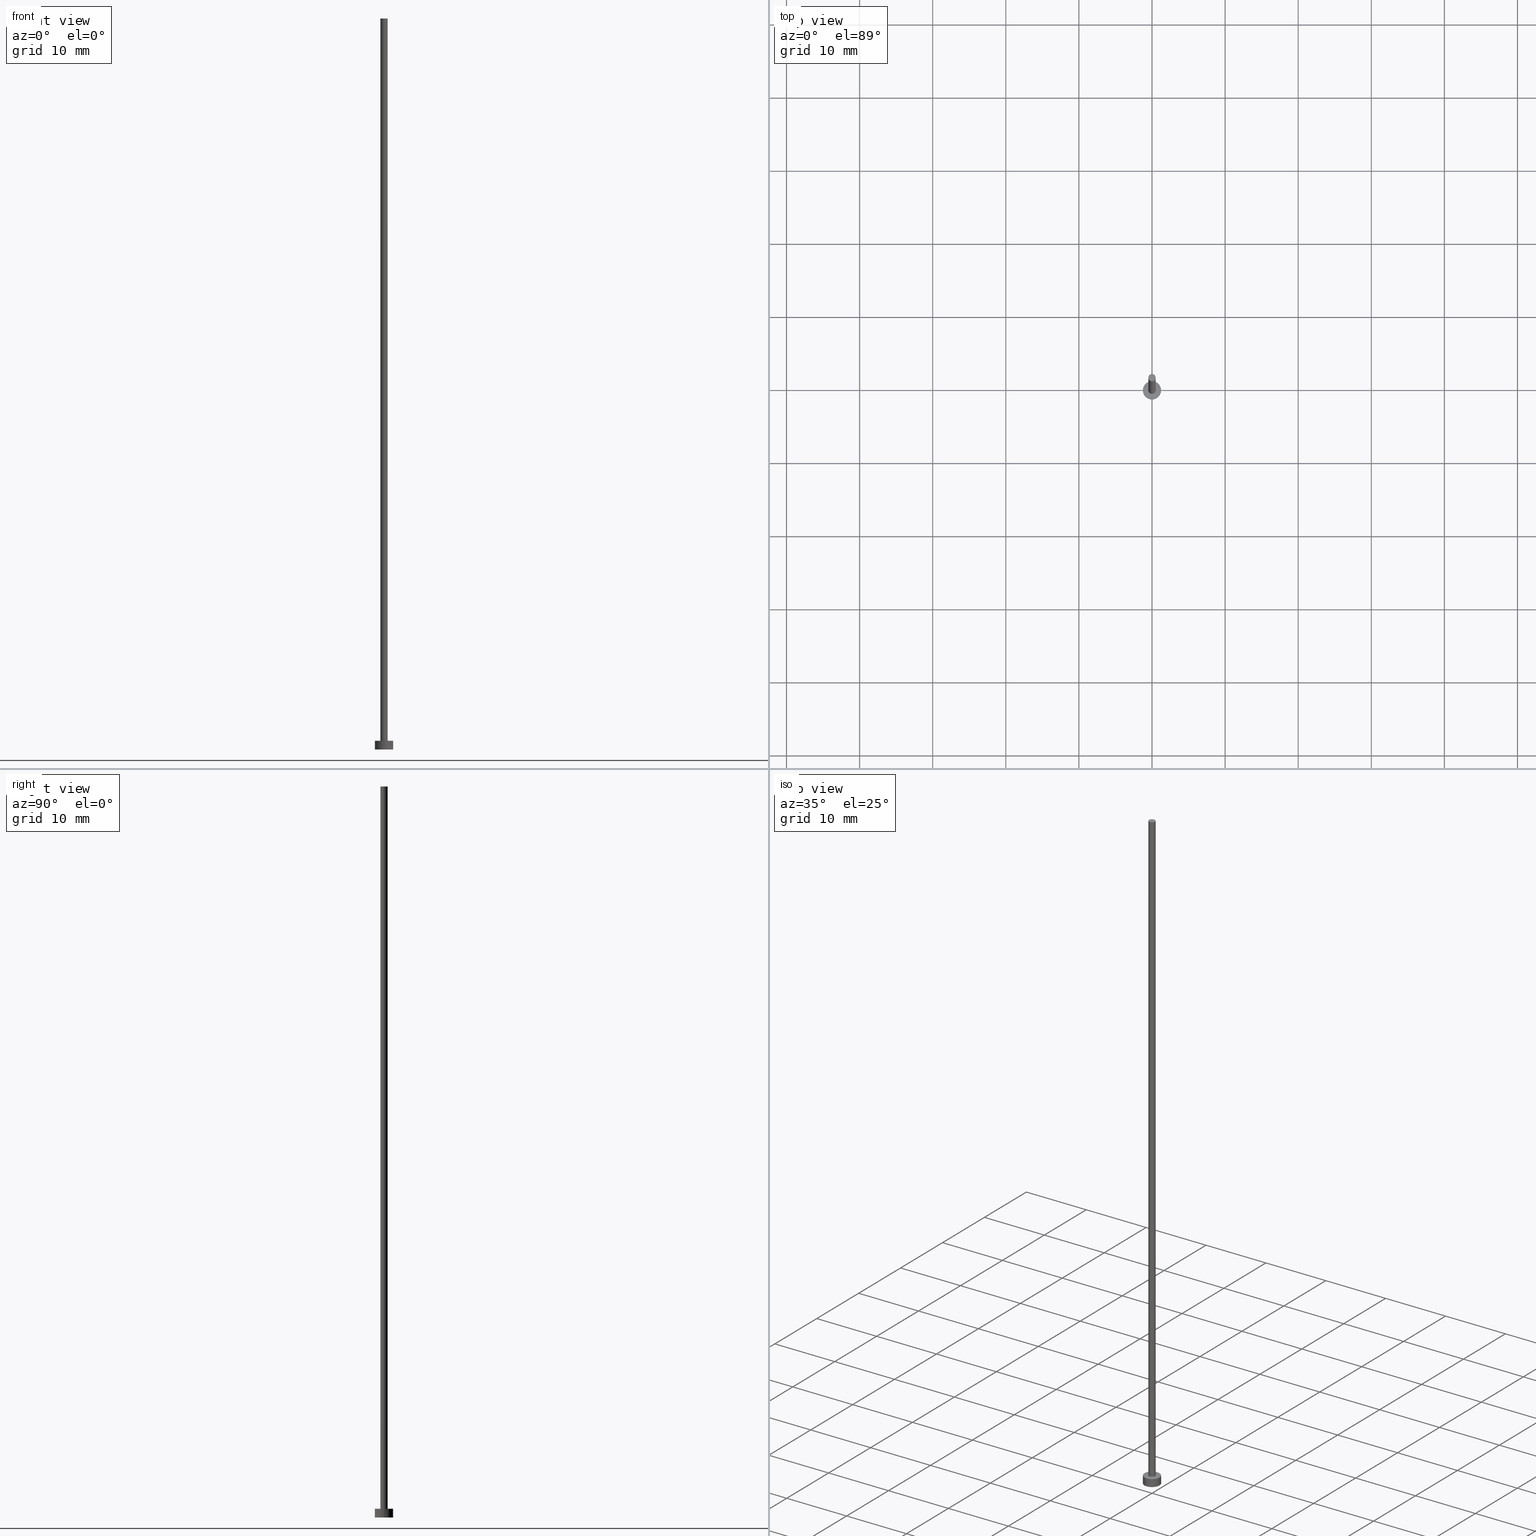
[diagram: canonical four-view strip — front | top / right | iso, engineering-drawing reading convention]
A machine part, canonical four-view strip (front | top / right | iso — engineering-drawing reading convention). The complete STEP part file that produces these views, byte-faithful:
ISO-10303-21;
HEADER;
FILE_DESCRIPTION (( 'STEP AP203' ),
    '1' );
FILE_NAME ('d6e6.STEP',
    '2024-05-30T11:23:34',
    ( '' ),
    ( '' ),
    'SwSTEP 2.0',
    'SolidWorks 2019',
    '' );
FILE_SCHEMA (( 'CONFIG_CONTROL_DESIGN' ));
ENDSEC;

DATA;
#1 = APPROVAL ( #203, 'NEUR�EN�' ) ;
#2 = VERTEX_POINT ( 'NONE', #47 ) ;
#3 = DIRECTION ( 'NONE',  ( 1.000000000000000000, 0.000000000000000000, 0.000000000000000000 ) ) ;
#4 = DIRECTION ( 'NONE',  ( 0.000000000000000000, 0.000000000000000000, 1.000000000000000000 ) ) ;
#5 = DIRECTION ( 'NONE',  ( 1.000000000000000000, 0.000000000000000000, 0.000000000000000000 ) ) ;
#6 = LINE ( 'NONE', #115, #59 ) ;
#7 = CIRCLE ( 'NONE', #161, 1.250000000000000000 ) ;
#8 = PLANE ( 'NONE',  #208 ) ;
#9 = DATE_TIME_ROLE ( 'creation_date' ) ;
#10 = APPROVAL_DATE_TIME ( #227, #36 ) ;
#11 = DIRECTION ( 'NONE',  ( 0.000000000000000000, 0.000000000000000000, 1.000000000000000000 ) ) ;
#12 = VERTEX_POINT ( 'NONE', #144 ) ;
#13 = CIRCLE ( 'NONE', #179, 0.5000000000000000000 ) ;
#14 = CC_DESIGN_PERSON_AND_ORGANIZATION_ASSIGNMENT ( #68, #221, ( #75 ) ) ;
#15 = EDGE_LOOP ( 'NONE', ( #127, #237 ) ) ;
#16 = PLANE ( 'NONE',  #165 ) ;
#17 = CARTESIAN_POINT ( 'NONE',  ( -0.5000000000000000000, 0.000000000000000000, 1.199999999999999956 ) ) ;
#18 = CARTESIAN_POINT ( 'NONE',  ( 1.250000000000000000, 1.530808498934191571E-16, 0.000000000000000000 ) ) ;
#19 = CARTESIAN_POINT ( 'NONE',  ( 0.000000000000000000, 0.000000000000000000, 1.199999999999999956 ) ) ;
#20 = DIRECTION ( 'NONE',  ( 1.000000000000000000, 0.000000000000000000, 0.000000000000000000 ) ) ;
#21 = PRODUCT_RELATED_PRODUCT_CATEGORY ( 'detail', '', ( #166 ) ) ;
#22 = FACE_OUTER_BOUND ( 'NONE', #168, .T. ) ;
#23 = PERSON_AND_ORGANIZATION ( #117, #113 ) ;
#24 = CC_DESIGN_DATE_AND_TIME_ASSIGNMENT ( #212, #187, ( #124 ) ) ;
#25 = DIRECTION ( 'NONE',  ( -0.000000000000000000, -0.000000000000000000, -1.000000000000000000 ) ) ;
#26 = APPROVAL_ROLE ( '' ) ;
#27 = AXIS2_PLACEMENT_3D ( 'NONE', #241, #195, #3 ) ;
#28 = ORIENTED_EDGE ( 'NONE', *, *, #50, .T. ) ;
#29 = LOCAL_TIME ( 13, 23, 34.00000000000000000, #63 ) ;
#30 = SHAPE_DEFINITION_REPRESENTATION ( #229, #71 ) ;
#31 = ORIENTED_EDGE ( 'NONE', *, *, #104, .T. ) ;
#32 = AXIS2_PLACEMENT_3D ( 'NONE', #172, #114, #169 ) ;
#33 = ORIENTED_EDGE ( 'NONE', *, *, #148, .T. ) ;
#34 = AXIS2_PLACEMENT_3D ( 'NONE', #37, #80, #53 ) ;
#35 = CARTESIAN_POINT ( 'NONE',  ( 0.5000000000000000000, 6.123233995736766036E-17, 1.199999999999999956 ) ) ;
#36 = APPROVAL ( #62, 'NEUR�EN�' ) ;
#37 = CARTESIAN_POINT ( 'NONE',  ( 0.000000000000000000, 0.000000000000000000, 100.0000000000000000 ) ) ;
#38 = CARTESIAN_POINT ( 'NONE',  ( 0.000000000000000000, 0.000000000000000000, 0.000000000000000000 ) ) ;
#39 = AXIS2_PLACEMENT_3D ( 'NONE', #200, #246, #251 ) ;
#40 = DIRECTION ( 'NONE',  ( 0.000000000000000000, 0.000000000000000000, 1.000000000000000000 ) ) ;
#41 = CARTESIAN_POINT ( 'NONE',  ( -1.250000000000000000, 0.000000000000000000, 0.000000000000000000 ) ) ;
#42 = ADVANCED_FACE ( 'NONE', ( #121 ), #163, .T. ) ;
#43 = CIRCLE ( 'NONE', #185, 1.250000000000000000 ) ;
#44 = CARTESIAN_POINT ( 'NONE',  ( 0.5000000000000000000, 6.123233995736766036E-17, 100.0000000000000000 ) ) ;
#45 = PERSON_AND_ORGANIZATION_ROLE ( 'design_owner' ) ;
#46 = CALENDAR_DATE ( 2024, 30, 5 ) ;
#47 = CARTESIAN_POINT ( 'NONE',  ( -0.5000000000000000000, 0.000000000000000000, 100.0000000000000000 ) ) ;
#48 = DIRECTION ( 'NONE',  ( -1.000000000000000000, 0.000000000000000000, 0.000000000000000000 ) ) ;
#49 = ORIENTED_EDGE ( 'NONE', *, *, #131, .T. ) ;
#50 = EDGE_CURVE ( 'NONE', #106, #2, #140, .T. ) ;
#51 = EDGE_LOOP ( 'NONE', ( #210, #213, #190, #90 ) ) ;
#52 = ORIENTED_EDGE ( 'NONE', *, *, #222, .F. ) ;
#53 = DIRECTION ( 'NONE',  ( -1.000000000000000000, 0.000000000000000000, 0.000000000000000000 ) ) ;
#54 = ADVANCED_FACE ( 'NONE', ( #219 ), #97, .T. ) ;
#55 =( GEOMETRIC_REPRESENTATION_CONTEXT ( 3 ) GLOBAL_UNCERTAINTY_ASSIGNED_CONTEXT ( ( #170 ) ) GLOBAL_UNIT_ASSIGNED_CONTEXT ( ( #120, #101, #139 ) ) REPRESENTATION_CONTEXT ( 'NONE', 'WORKASPACE' ) );
#56 = LINE ( 'NONE', #242, #243 ) ;
#57 = FACE_OUTER_BOUND ( 'NONE', #143, .T. ) ;
#58 = DIRECTION ( 'NONE',  ( 0.000000000000000000, 0.000000000000000000, 1.000000000000000000 ) ) ;
#59 = VECTOR ( 'NONE', #197, 1000.000000000000000 ) ;
#60 = CC_DESIGN_PERSON_AND_ORGANIZATION_ASSIGNMENT ( #83, #154, ( #73 ) ) ;
#61 = DIRECTION ( 'NONE',  ( 1.000000000000000000, 0.000000000000000000, 0.000000000000000000 ) ) ;
#62 = APPROVAL_STATUS ( 'not_yet_approved' ) ;
#63 = COORDINATED_UNIVERSAL_TIME_OFFSET ( 1, 0, .AHEAD. ) ;
#64 = EDGE_CURVE ( 'NONE', #12, #142, #176, .T. ) ;
#65 = LOCAL_TIME ( 13, 23, 34.00000000000000000, #135 ) ;
#66 = PERSON_AND_ORGANIZATION ( #117, #113 ) ;
#67 = MANIFOLD_SOLID_BREP ( 'P�idat vysunut�m3', #201 ) ;
#68 = PERSON_AND_ORGANIZATION ( #117, #113 ) ;
#69 = CYLINDRICAL_SURFACE ( 'NONE', #231, 1.250000000000000000 ) ;
#70 = APPROVAL ( #107, 'NEUR�EN�' ) ;
#71 = ADVANCED_BREP_SHAPE_REPRESENTATION ( 'd6e6', ( #67, #39 ), #55 ) ;
#72 = ORIENTED_EDGE ( 'NONE', *, *, #164, .F. ) ;
#73 = PRODUCT_DEFINITION ( 'NEZN�M�', '', #75, #248 ) ;
#74 = EDGE_LOOP ( 'NONE', ( #211, #232, #33, #49 ) ) ;
#75 = PRODUCT_DEFINITION_FORMATION_WITH_SPECIFIED_SOURCE ( 'LIBOVOLN�', '', #166, .NOT_KNOWN. ) ;
#76 = EDGE_LOOP ( 'NONE', ( #254, #125, #77, #126 ) ) ;
#77 = ORIENTED_EDGE ( 'NONE', *, *, #100, .T. ) ;
#78 = FACE_OUTER_BOUND ( 'NONE', #76, .T. ) ;
#79 = LOCAL_TIME ( 13, 23, 34.00000000000000000, #141 ) ;
#80 = DIRECTION ( 'NONE',  ( -0.000000000000000000, -0.000000000000000000, -1.000000000000000000 ) ) ;
#81 = CARTESIAN_POINT ( 'NONE',  ( 0.000000000000000000, 0.000000000000000000, 1.199999999999999956 ) ) ;
#82 = CARTESIAN_POINT ( 'NONE',  ( 0.000000000000000000, 0.000000000000000000, 0.000000000000000000 ) ) ;
#83 = PERSON_AND_ORGANIZATION ( #117, #113 ) ;
#84 = SECURITY_CLASSIFICATION_LEVEL ( 'unclassified' ) ;
#85 = EDGE_CURVE ( 'NONE', #2, #106, #119, .T. ) ;
#86 = APPLICATION_PROTOCOL_DEFINITION ( 'international standard', 'config_control_design', 1994, #183 ) ;
#87 = CALENDAR_DATE ( 2024, 30, 5 ) ;
#88 = CARTESIAN_POINT ( 'NONE',  ( 1.250000000000000000, 1.530808498934191571E-16, 1.199999999999999956 ) ) ;
#89 = EDGE_CURVE ( 'NONE', #12, #235, #239, .T. ) ;
#90 = ORIENTED_EDGE ( 'NONE', *, *, #222, .T. ) ;
#91 = ORIENTED_EDGE ( 'NONE', *, *, #111, .T. ) ;
#92 = ORIENTED_EDGE ( 'NONE', *, *, #85, .T. ) ;
#93 = FACE_BOUND ( 'NONE', #15, .T. ) ;
#94 = DIRECTION ( 'NONE',  ( 1.000000000000000000, 0.000000000000000000, 0.000000000000000000 ) ) ;
#95 = DIRECTION ( 'NONE',  ( 0.000000000000000000, 0.000000000000000000, 1.000000000000000000 ) ) ;
#96 = FACE_OUTER_BOUND ( 'NONE', #206, .T. ) ;
#97 = CYLINDRICAL_SURFACE ( 'NONE', #32, 1.250000000000000000 ) ;
#98 = AXIS2_PLACEMENT_3D ( 'NONE', #19, #132, #150 ) ;
#99 = LOCAL_TIME ( 13, 23, 34.00000000000000000, #245 ) ;
#100 = EDGE_CURVE ( 'NONE', #186, #123, #13, .T. ) ;
#101 =( NAMED_UNIT ( * ) PLANE_ANGLE_UNIT ( ) SI_UNIT ( $, .RADIAN. ) );
#102 = DIRECTION ( 'NONE',  ( -1.000000000000000000, 0.000000000000000000, 0.000000000000000000 ) ) ;
#103 = APPLICATION_PROTOCOL_DEFINITION ( 'international standard', 'config_control_design', 1994, #167 ) ;
#104 = EDGE_CURVE ( 'NONE', #235, #192, #56, .T. ) ;
#105 = CALENDAR_DATE ( 2024, 30, 5 ) ;
#106 = VERTEX_POINT ( 'NONE', #134 ) ;
#107 = APPROVAL_STATUS ( 'not_yet_approved' ) ;
#108 = ORIENTED_EDGE ( 'NONE', *, *, #111, .F. ) ;
#109 = CC_DESIGN_PERSON_AND_ORGANIZATION_ASSIGNMENT ( #155, #228, ( #124 ) ) ;
#110 = DIRECTION ( 'NONE',  ( 0.000000000000000000, 0.000000000000000000, 1.000000000000000000 ) ) ;
#111 = EDGE_CURVE ( 'NONE', #192, #142, #175, .T. ) ;
#112 = DIRECTION ( 'NONE',  ( 1.000000000000000000, 0.000000000000000000, -0.000000000000000000 ) ) ;
#113 = ORGANIZATION ( 'NEUR�EN�', 'NEUR�EN�', '' ) ;
#114 = DIRECTION ( 'NONE',  ( -0.000000000000000000, -0.000000000000000000, -1.000000000000000000 ) ) ;
#115 = CARTESIAN_POINT ( 'NONE',  ( -0.5000000000000000000, 0.000000000000000000, 100.0000000000000000 ) ) ;
#116 = AXIS2_PLACEMENT_3D ( 'NONE', #217, #58, #220 ) ;
#117 = PERSON ( 'NEUR�EN�', 'NEUR�EN�', 'NEUR�EN�', ('NEUR�EN�'), ('NEUR�EN�'), ('NEUR�EN�') ) ;
#118 = APPROVAL_ROLE ( '' ) ;
#119 = CIRCLE ( 'NONE', #27, 0.5000000000000000000 ) ;
#120 =( LENGTH_UNIT ( ) NAMED_UNIT ( * ) SI_UNIT ( .MILLI., .METRE. ) );
#121 = FACE_OUTER_BOUND ( 'NONE', #74, .T. ) ;
#122 = PERSON_AND_ORGANIZATION ( #117, #113 ) ;
#123 = VERTEX_POINT ( 'NONE', #17 ) ;
#124 = SECURITY_CLASSIFICATION ( '', '', #84 ) ;
#125 = ORIENTED_EDGE ( 'NONE', *, *, #234, .T. ) ;
#126 = ORIENTED_EDGE ( 'NONE', *, *, #148, .F. ) ;
#127 = ORIENTED_EDGE ( 'NONE', *, *, #131, .F. ) ;
#128 = DIRECTION ( 'NONE',  ( 1.000000000000000000, 0.000000000000000000, -0.000000000000000000 ) ) ;
#129 = APPROVAL_PERSON_ORGANIZATION ( #122, #70, #252 ) ;
#130 = DIRECTION ( 'NONE',  ( 1.000000000000000000, 0.000000000000000000, -0.000000000000000000 ) ) ;
#131 = EDGE_CURVE ( 'NONE', #123, #186, #151, .T. ) ;
#132 = DIRECTION ( 'NONE',  ( 0.000000000000000000, 0.000000000000000000, 1.000000000000000000 ) ) ;
#133 = CARTESIAN_POINT ( 'NONE',  ( 0.000000000000000000, 0.000000000000000000, 1.199999999999999956 ) ) ;
#134 = CARTESIAN_POINT ( 'NONE',  ( 0.5000000000000000000, 6.123233995736766036E-17, 100.0000000000000000 ) ) ;
#135 = COORDINATED_UNIVERSAL_TIME_OFFSET ( 1, 0, .AHEAD. ) ;
#136 = CALENDAR_DATE ( 2024, 30, 5 ) ;
#137 = APPROVAL_PERSON_ORGANIZATION ( #23, #1, #26 ) ;
#138 = ADVANCED_FACE ( 'NONE', ( #93, #57 ), #8, .T. ) ;
#139 =( NAMED_UNIT ( * ) SI_UNIT ( $, .STERADIAN. ) SOLID_ANGLE_UNIT ( ) );
#140 = CIRCLE ( 'NONE', #255, 0.5000000000000000000 ) ;
#141 = COORDINATED_UNIVERSAL_TIME_OFFSET ( 1, 0, .AHEAD. ) ;
#142 = VERTEX_POINT ( 'NONE', #41 ) ;
#143 = EDGE_LOOP ( 'NONE', ( #209, #184 ) ) ;
#144 = CARTESIAN_POINT ( 'NONE',  ( -1.250000000000000000, 0.000000000000000000, 1.199999999999999956 ) ) ;
#145 = ADVANCED_FACE ( 'NONE', ( #96 ), #16, .F. ) ;
#146 = DIRECTION ( 'NONE',  ( 0.000000000000000000, 0.000000000000000000, 1.000000000000000000 ) ) ;
#147 = FACE_OUTER_BOUND ( 'NONE', #253, .T. ) ;
#148 = EDGE_CURVE ( 'NONE', #2, #123, #6, .T. ) ;
#149 = CARTESIAN_POINT ( 'NONE',  ( 0.000000000000000000, 0.000000000000000000, 1.199999999999999956 ) ) ;
#150 = DIRECTION ( 'NONE',  ( 1.000000000000000000, 0.000000000000000000, 0.000000000000000000 ) ) ;
#151 = CIRCLE ( 'NONE', #171, 0.5000000000000000000 ) ;
#152 = CARTESIAN_POINT ( 'NONE',  ( 0.000000000000000000, 0.000000000000000000, 1.199999999999999956 ) ) ;
#153 = ADVANCED_FACE ( 'NONE', ( #78 ), #238, .T. ) ;
#154 = PERSON_AND_ORGANIZATION_ROLE ( 'creator' ) ;
#155 = PERSON_AND_ORGANIZATION ( #117, #113 ) ;
#156 = PERSON_AND_ORGANIZATION ( #117, #113 ) ;
#157 = CC_DESIGN_APPROVAL ( #1, ( #73 ) ) ;
#158 = PERSON_AND_ORGANIZATION ( #117, #113 ) ;
#159 = CARTESIAN_POINT ( 'NONE',  ( 0.000000000000000000, 0.000000000000000000, 1.199999999999999956 ) ) ;
#160 = AXIS2_PLACEMENT_3D ( 'NONE', #233, #162, #48 ) ;
#161 = AXIS2_PLACEMENT_3D ( 'NONE', #149, #215, #216 ) ;
#162 = DIRECTION ( 'NONE',  ( -0.000000000000000000, -0.000000000000000000, -1.000000000000000000 ) ) ;
#163 = CYLINDRICAL_SURFACE ( 'NONE', #160, 0.5000000000000000000 ) ;
#164 = EDGE_CURVE ( 'NONE', #235, #12, #7, .T. ) ;
#165 = AXIS2_PLACEMENT_3D ( 'NONE', #38, #146, #128 ) ;
#166 = PRODUCT ( 'd6e6', 'd6e6', '', ( #230 ) ) ;
#167 = APPLICATION_CONTEXT ( 'configuration controlled 3d designs of mechanical parts and assemblies' ) ;
#168 = EDGE_LOOP ( 'NONE', ( #72, #31, #91, #188 ) ) ;
#169 = DIRECTION ( 'NONE',  ( -1.000000000000000000, 0.000000000000000000, 0.000000000000000000 ) ) ;
#170 = UNCERTAINTY_MEASURE_WITH_UNIT (LENGTH_MEASURE( 1.000000000000000082E-05 ), #120, 'distance_accuracy_value', 'NONE');
#171 = AXIS2_PLACEMENT_3D ( 'NONE', #81, #174, #94 ) ;
#172 = CARTESIAN_POINT ( 'NONE',  ( 0.000000000000000000, 0.000000000000000000, 1.199999999999999956 ) ) ;
#173 = PLANE ( 'NONE',  #191 ) ;
#174 = DIRECTION ( 'NONE',  ( 0.000000000000000000, 0.000000000000000000, 1.000000000000000000 ) ) ;
#175 = CIRCLE ( 'NONE', #116, 1.250000000000000000 ) ;
#176 = LINE ( 'NONE', #193, #223 ) ;
#177 = COORDINATED_UNIVERSAL_TIME_OFFSET ( 1, 0, .AHEAD. ) ;
#178 = CC_DESIGN_PERSON_AND_ORGANIZATION_ASSIGNMENT ( #158, #249, ( #75 ) ) ;
#179 = AXIS2_PLACEMENT_3D ( 'NONE', #152, #95, #61 ) ;
#180 = DATE_AND_TIME ( #87, #99 ) ;
#181 = LOCAL_TIME ( 13, 23, 34.00000000000000000, #177 ) ;
#182 = APPROVAL_DATE_TIME ( #247, #1 ) ;
#183 = APPLICATION_CONTEXT ( 'configuration controlled 3d designs of mechanical parts and assemblies' ) ;
#184 = ORIENTED_EDGE ( 'NONE', *, *, #164, .T. ) ;
#185 = AXIS2_PLACEMENT_3D ( 'NONE', #82, #110, #5 ) ;
#186 = VERTEX_POINT ( 'NONE', #35 ) ;
#187 = DATE_TIME_ROLE ( 'classification_date' ) ;
#188 = ORIENTED_EDGE ( 'NONE', *, *, #64, .F. ) ;
#189 = ADVANCED_FACE ( 'NONE', ( #147 ), #173, .T. ) ;
#190 = ORIENTED_EDGE ( 'NONE', *, *, #64, .T. ) ;
#191 = AXIS2_PLACEMENT_3D ( 'NONE', #240, #40, #112 ) ;
#192 = VERTEX_POINT ( 'NONE', #18 ) ;
#193 = CARTESIAN_POINT ( 'NONE',  ( -1.250000000000000000, 0.000000000000000000, 1.199999999999999956 ) ) ;
#194 = LINE ( 'NONE', #44, #198 ) ;
#195 = DIRECTION ( 'NONE',  ( 0.000000000000000000, 0.000000000000000000, 1.000000000000000000 ) ) ;
#196 = DIRECTION ( 'NONE',  ( -0.000000000000000000, -0.000000000000000000, -1.000000000000000000 ) ) ;
#197 = DIRECTION ( 'NONE',  ( -0.000000000000000000, -0.000000000000000000, -1.000000000000000000 ) ) ;
#198 = VECTOR ( 'NONE', #224, 1000.000000000000000 ) ;
#199 = CC_DESIGN_PERSON_AND_ORGANIZATION_ASSIGNMENT ( #156, #45, ( #166 ) ) ;
#200 = CARTESIAN_POINT ( 'NONE',  ( 0.000000000000000000, 0.000000000000000000, 0.000000000000000000 ) ) ;
#201 = CLOSED_SHELL ( 'NONE', ( #153, #250, #54, #138, #145, #42, #189 ) ) ;
#202 = CALENDAR_DATE ( 2024, 30, 5 ) ;
#203 = APPROVAL_STATUS ( 'not_yet_approved' ) ;
#204 = CC_DESIGN_DATE_AND_TIME_ASSIGNMENT ( #180, #9, ( #73 ) ) ;
#205 = APPROVAL_DATE_TIME ( #207, #70 ) ;
#206 = EDGE_LOOP ( 'NONE', ( #52, #108 ) ) ;
#207 = DATE_AND_TIME ( #46, #79 ) ;
#208 = AXIS2_PLACEMENT_3D ( 'NONE', #133, #4, #130 ) ;
#209 = ORIENTED_EDGE ( 'NONE', *, *, #89, .T. ) ;
#210 = ORIENTED_EDGE ( 'NONE', *, *, #104, .F. ) ;
#211 = ORIENTED_EDGE ( 'NONE', *, *, #234, .F. ) ;
#212 = DATE_AND_TIME ( #136, #29 ) ;
#213 = ORIENTED_EDGE ( 'NONE', *, *, #89, .F. ) ;
#214 = CC_DESIGN_APPROVAL ( #70, ( #124 ) ) ;
#215 = DIRECTION ( 'NONE',  ( 0.000000000000000000, 0.000000000000000000, 1.000000000000000000 ) ) ;
#216 = DIRECTION ( 'NONE',  ( 1.000000000000000000, 0.000000000000000000, 0.000000000000000000 ) ) ;
#217 = CARTESIAN_POINT ( 'NONE',  ( 0.000000000000000000, 0.000000000000000000, 0.000000000000000000 ) ) ;
#218 = APPROVAL_PERSON_ORGANIZATION ( #66, #36, #118 ) ;
#219 = FACE_OUTER_BOUND ( 'NONE', #51, .T. ) ;
#220 = DIRECTION ( 'NONE',  ( 1.000000000000000000, 0.000000000000000000, 0.000000000000000000 ) ) ;
#221 = PERSON_AND_ORGANIZATION_ROLE ( 'design_supplier' ) ;
#222 = EDGE_CURVE ( 'NONE', #142, #192, #43, .T. ) ;
#223 = VECTOR ( 'NONE', #196, 1000.000000000000000 ) ;
#224 = DIRECTION ( 'NONE',  ( -0.000000000000000000, -0.000000000000000000, -1.000000000000000000 ) ) ;
#225 = CC_DESIGN_APPROVAL ( #36, ( #75 ) ) ;
#226 = CC_DESIGN_SECURITY_CLASSIFICATION ( #124, ( #75 ) ) ;
#227 = DATE_AND_TIME ( #202, #65 ) ;
#228 = PERSON_AND_ORGANIZATION_ROLE ( 'classification_officer' ) ;
#229 = PRODUCT_DEFINITION_SHAPE ( 'NONE', 'NONE',  #73 ) ;
#230 = MECHANICAL_CONTEXT ( 'NONE', #183, 'mechanical' ) ;
#231 = AXIS2_PLACEMENT_3D ( 'NONE', #159, #25, #102 ) ;
#232 = ORIENTED_EDGE ( 'NONE', *, *, #85, .F. ) ;
#233 = CARTESIAN_POINT ( 'NONE',  ( 0.000000000000000000, 0.000000000000000000, 100.0000000000000000 ) ) ;
#234 = EDGE_CURVE ( 'NONE', #106, #186, #194, .T. ) ;
#235 = VERTEX_POINT ( 'NONE', #88 ) ;
#236 = CARTESIAN_POINT ( 'NONE',  ( 0.000000000000000000, 0.000000000000000000, 100.0000000000000000 ) ) ;
#237 = ORIENTED_EDGE ( 'NONE', *, *, #100, .F. ) ;
#238 = CYLINDRICAL_SURFACE ( 'NONE', #34, 0.5000000000000000000 ) ;
#239 = CIRCLE ( 'NONE', #98, 1.250000000000000000 ) ;
#240 = CARTESIAN_POINT ( 'NONE',  ( 0.000000000000000000, 0.000000000000000000, 100.0000000000000000 ) ) ;
#241 = CARTESIAN_POINT ( 'NONE',  ( 0.000000000000000000, 0.000000000000000000, 100.0000000000000000 ) ) ;
#242 = CARTESIAN_POINT ( 'NONE',  ( 1.250000000000000000, 1.530808498934191571E-16, 1.199999999999999956 ) ) ;
#243 = VECTOR ( 'NONE', #244, 1000.000000000000000 ) ;
#244 = DIRECTION ( 'NONE',  ( -0.000000000000000000, -0.000000000000000000, -1.000000000000000000 ) ) ;
#245 = COORDINATED_UNIVERSAL_TIME_OFFSET ( 1, 0, .AHEAD. ) ;
#246 = DIRECTION ( 'NONE',  ( 0.000000000000000000, 0.000000000000000000, 1.000000000000000000 ) ) ;
#247 = DATE_AND_TIME ( #105, #181 ) ;
#248 = DESIGN_CONTEXT ( 'detailed design', #167, 'design' ) ;
#249 = PERSON_AND_ORGANIZATION_ROLE ( 'creator' ) ;
#250 = ADVANCED_FACE ( 'NONE', ( #22 ), #69, .T. ) ;
#251 = DIRECTION ( 'NONE',  ( 1.000000000000000000, 0.000000000000000000, 0.000000000000000000 ) ) ;
#252 = APPROVAL_ROLE ( '' ) ;
#253 = EDGE_LOOP ( 'NONE', ( #92, #28 ) ) ;
#254 = ORIENTED_EDGE ( 'NONE', *, *, #50, .F. ) ;
#255 = AXIS2_PLACEMENT_3D ( 'NONE', #236, #11, #20 ) ;
ENDSEC;
END-ISO-10303-21;
